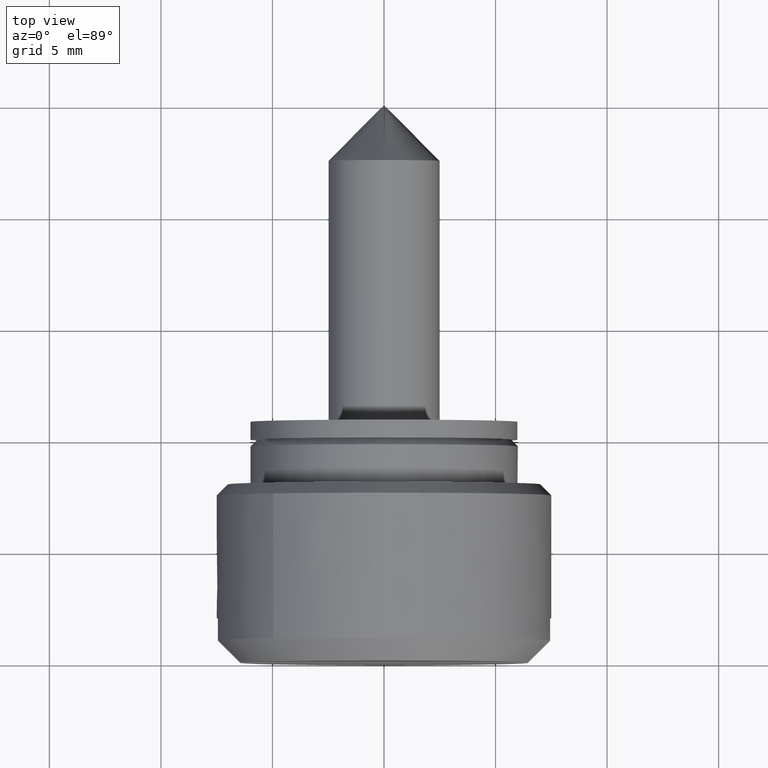
[diagram: clean part render]
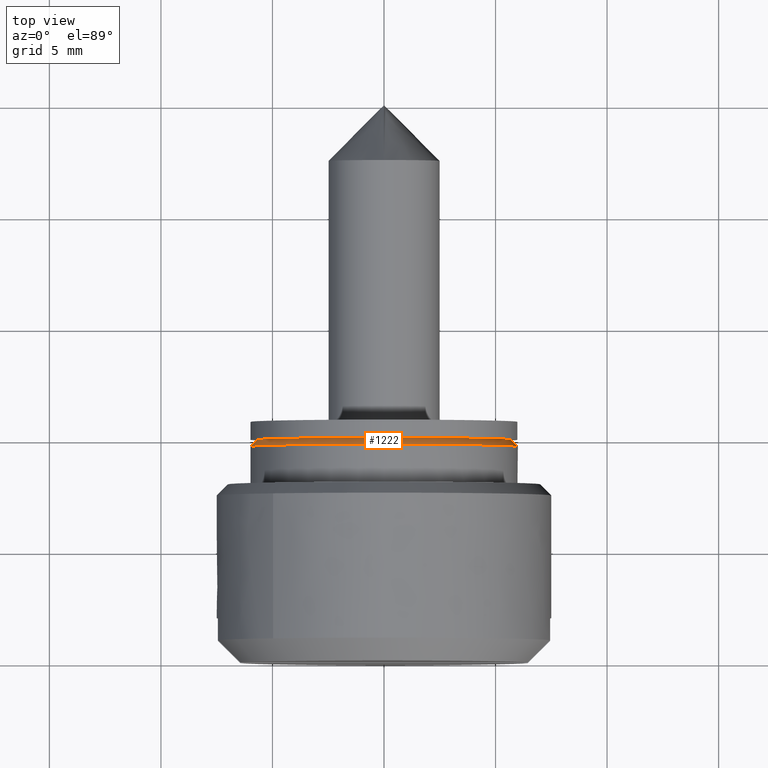
[diagram: same view with one face highlighted and labeled with its STEP entity id]
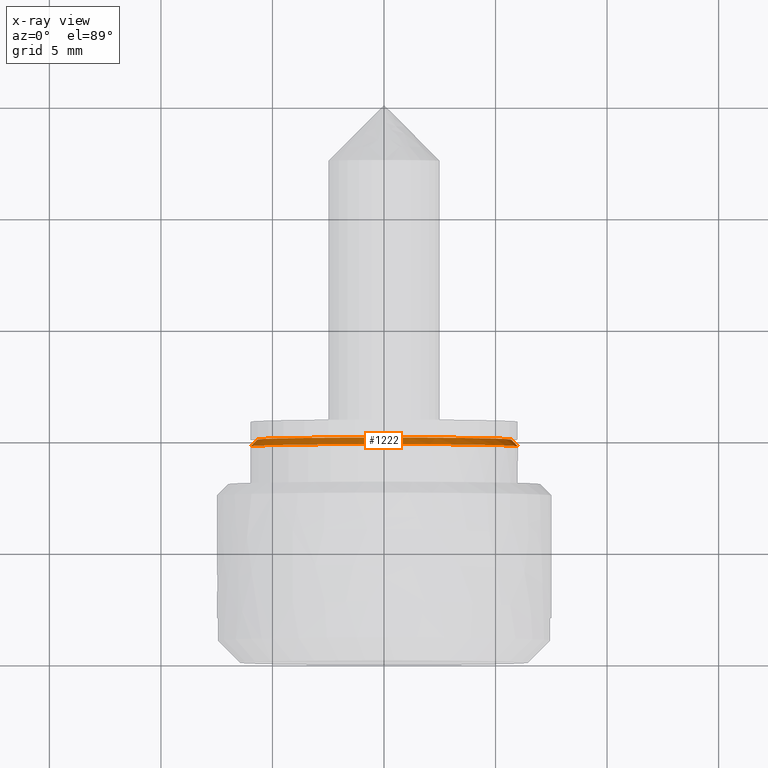
[diagram: x-ray of the same camera — body ghosted, the highlighted face saturated]
A machine part, top view. The second image highlights one B-rep face of the part: STEP entity #1222.
The next image is the same camera in x-ray: the body ghosted, the highlighted face saturated — about 0% of this face is hidden behind the body in this view.
In plain terms, the highlighted face is a freeform B-spline surface patch.
Its self-contained STEP definition (entity closure, byte-faithful):
#1025=CARTESIAN_POINT('',(-0.300000000001781,5.986956455158342,-0.395414218332650));
#1026=VERTEX_POINT('',#1025);
#1042=CARTESIAN_POINT('',(-9.314638E-013,5.687608632400035,-0.375643507409910));
#1043=VERTEX_POINT('',#1042);
#1044=CARTESIAN_POINT('',(-9.314638E-013,5.687608632400035,-0.375643507409910));
#1045=CARTESIAN_POINT('',(-0.300000000001781,5.986956455158342,-0.395414218332650));
#1046=QUASI_UNIFORM_CURVE('',1,(#1044,#1045),.UNSPECIFIED.,.F.,.U.);
#1047=EDGE_CURVE('',#1043,#1026,#1046,.T.);
#1064=CARTESIAN_POINT('',(-2.028944E-012,-5.699782961467674,0.049741252355682));
#1065=VERTEX_POINT('',#1064);
#1081=CARTESIAN_POINT('',(-0.300000000000748,-5.999771538385758,0.052359212996004));
#1082=VERTEX_POINT('',#1081);
#1083=CARTESIAN_POINT('',(-2.028944E-012,-5.699782961467674,0.049741252355682));
#1084=CARTESIAN_POINT('',(-0.300000000000748,-5.999771538385758,0.052359212996004));
#1085=QUASI_UNIFORM_CURVE('',1,(#1083,#1084),.UNSPECIFIED.,.F.,.U.);
#1086=EDGE_CURVE('',#1065,#1082,#1085,.T.);
#1121=CARTESIAN_POINT('',(0.007499999999999,-5.692283247042793,0.049675803324493));
#1122=CARTESIAN_POINT('',(0.007499999999999,-5.642607443718299,5.741959050367286));
#1123=CARTESIAN_POINT('',(0.007499999999999,0.049675803324493,5.692283247042793));
#1124=CARTESIAN_POINT('',(0.007499999999999,5.741959050367286,5.642607443718299));
#1125=CARTESIAN_POINT('',(0.007499999999999,5.692283247042793,-0.049675803324493));
#1126=CARTESIAN_POINT('',(0.007499999999999,5.690861546893815,-0.212586504284569));
#1127=CARTESIAN_POINT('',(0.007499999999999,5.680124936830620,-0.375149239629936));
#1128=CARTESIAN_POINT('',(-0.307687499999966,-6.007458745668583,0.052426298231887));
#1129=CARTESIAN_POINT('',(-0.307687499999966,-5.955032447436696,6.059885043900469));
#1130=CARTESIAN_POINT('',(-0.307687499999966,0.052426298231887,6.007458745668583));
#1131=CARTESIAN_POINT('',(-0.307687499999966,6.059885043900469,5.955032447436696));
#1132=CARTESIAN_POINT('',(-0.307687499999966,6.007458745668583,-0.052426298231887));
#1133=CARTESIAN_POINT('',(-0.307687499999966,6.005958327537047,-0.224357186554080));
#1134=CARTESIAN_POINT('',(-0.307687499999966,5.994627243115611,-0.395920842785994));
#1142=(BOUNDED_SURFACE()B_SPLINE_SURFACE(2,1,((#1121,#1128),(#1122,#1129),(#1123,#1130),(#1124,#1131),(#1125,#1132),(#1126,#1133),(#1127,#1134)),.UNSPECIFIED.,.F.,.F.,.U.)B_SPLINE_SURFACE_WITH_KNOTS((3,2,2,3),(2,2),(0.0,9.953862563997252,19.907725127994500,20.305879630554390),(0.0,0.445742437190447),.UNSPECIFIED.)GEOMETRIC_REPRESENTATION_ITEM()RATIONAL_B_SPLINE_SURFACE(((1.0,1.0),(0.707106781186548,0.707106781186548),(1.0,1.0),(0.707106781186548,0.707106781186548),(1.0,1.0),(0.988284271247462,0.988284271247462),(0.977505800795127,0.977505800795127)))REPRESENTATION_ITEM('')SURFACE());
#1143=CARTESIAN_POINT('',(-0.299999999999967,5.981504327185722,0.470750447521118));
#1144=VERTEX_POINT('',#1143);
#1145=CARTESIAN_POINT('',(-0.299999999999967,5.981504327185722,0.470750447521118));
#1146=CARTESIAN_POINT('',(-0.299999999999967,6.000000000000001,0.235738569047488));
#1147=CARTESIAN_POINT('',(-0.299999999999967,6.0,0.0));
#1148=CARTESIAN_POINT('',(-0.299999999999967,6.0,-0.197922243144326));
#1149=CARTESIAN_POINT('',(-0.300000000001781,5.986956455158342,-0.395414218332650));
#1157=(BOUNDED_CURVE()B_SPLINE_CURVE(2,(#1145,#1146,#1147,#1148,#1149),.UNSPECIFIED.,.F.,.U.)B_SPLINE_CURVE_WITH_KNOTS((3,2,3),(0.736331418904445,0.750000000000000,0.761505472927561),.UNSPECIFIED.)CURVE()GEOMETRIC_REPRESENTATION_ITEM()RATIONAL_B_SPLINE_CURVE((0.969723602995916,0.983986261145241,1.0,0.986520500001102,0.974281704180720))REPRESENTATION_ITEM(''));
#1158=EDGE_CURVE('',#1144,#1026,#1157,.T.);
#1159=ORIENTED_EDGE('',*,*,#1158,.F.);
#1160=CARTESIAN_POINT('',(-0.299999999999967,0.0,6.0));
#1161=VERTEX_POINT('',#1160);
#1162=CARTESIAN_POINT('',(-0.299999999999967,0.0,6.0));
#1163=CARTESIAN_POINT('',(-0.299999999999967,5.546346788396235,6.0));
#1164=CARTESIAN_POINT('',(-0.299999999999967,5.981504327185722,0.470750447521118));
#1172=(BOUNDED_CURVE()B_SPLINE_CURVE(2,(#1162,#1163,#1164),.UNSPECIFIED.,.F.,.U.)B_SPLINE_CURVE_WITH_KNOTS((3,3),(0.500000000000000,0.736331418904445),.UNSPECIFIED.)CURVE()GEOMETRIC_REPRESENTATION_ITEM()RATIONAL_B_SPLINE_CURVE((1.0,0.723120520041307,0.969723602995916))REPRESENTATION_ITEM(''));
#1173=EDGE_CURVE('',#1161,#1144,#1172,.T.);
#1174=ORIENTED_EDGE('',*,*,#1173,.F.);
#1175=CARTESIAN_POINT('',(-0.300000000000748,-5.999771538385758,0.052359212996004));
#1176=CARTESIAN_POINT('',(-0.299999999999967,-5.947867263558460,6.0));
#1177=CARTESIAN_POINT('',(-0.299999999999967,0.0,6.0));
#1185=(BOUNDED_CURVE()B_SPLINE_CURVE(2,(#1175,#1176,#1177),.UNSPECIFIED.,.F.,.U.)B_SPLINE_CURVE_WITH_KNOTS((3,3),(0.251539894335325,0.500000000000000),.UNSPECIFIED.)CURVE()GEOMETRIC_REPRESENTATION_ITEM()RATIONAL_B_SPLINE_CURVE((0.996414028099624,0.708910879620571,1.0))REPRESENTATION_ITEM(''));
#1186=EDGE_CURVE('',#1082,#1161,#1185,.T.);
#1187=ORIENTED_EDGE('',*,*,#1186,.F.);
#1188=ORIENTED_EDGE('',*,*,#1086,.F.);
#1189=CARTESIAN_POINT('',(0.0,0.0,5.700000000000000));
#1190=VERTEX_POINT('',#1189);
#1191=CARTESIAN_POINT('',(0.0,0.0,5.700000000000000));
#1192=CARTESIAN_POINT('',(0.0,-5.650473900361770,5.700000000000000));
#1193=CARTESIAN_POINT('',(-2.028944E-012,-5.699782961467674,0.049741252355682));
#1201=(BOUNDED_CURVE()B_SPLINE_CURVE(2,(#1191,#1192,#1193),.UNSPECIFIED.,.F.,.U.)B_SPLINE_CURVE_WITH_KNOTS((3,3),(0.0,0.248460105664090),.UNSPECIFIED.)CURVE()GEOMETRIC_REPRESENTATION_ITEM()RATIONAL_B_SPLINE_CURVE((1.0,0.708910879621257,0.996414028098270))REPRESENTATION_ITEM(''));
#1202=EDGE_CURVE('',#1190,#1065,#1201,.T.);
#1203=ORIENTED_EDGE('',*,*,#1202,.F.);
#1204=CARTESIAN_POINT('',(-9.314638E-013,5.687608632400035,-0.375643507409910));
#1205=CARTESIAN_POINT('',(0.0,5.700000000000000,-0.188026130981032));
#1206=CARTESIAN_POINT('',(0.0,5.700000000000000,0.0));
#1207=CARTESIAN_POINT('',(0.0,5.699999999999999,5.699999999999999));
#1208=CARTESIAN_POINT('',(0.0,0.0,5.700000000000000));
#1216=(BOUNDED_CURVE()B_SPLINE_CURVE(2,(#1204,#1205,#1206,#1207,#1208),.UNSPECIFIED.,.F.,.U.)B_SPLINE_CURVE_WITH_KNOTS((3,2,3),(0.738494527072806,0.750000000000000,1.0),.UNSPECIFIED.)CURVE()GEOMETRIC_REPRESENTATION_ITEM()RATIONAL_B_SPLINE_CURVE((0.974281704181500,0.986520500001532,1.0,0.707106781186547,1.0))REPRESENTATION_ITEM(''));
#1217=EDGE_CURVE('',#1043,#1190,#1216,.T.);
#1218=ORIENTED_EDGE('',*,*,#1217,.F.);
#1219=ORIENTED_EDGE('',*,*,#1047,.T.);
#1220=EDGE_LOOP('',(#1159,#1174,#1187,#1188,#1203,#1218,#1219));
#1221=FACE_OUTER_BOUND('',#1220,.T.);
#1222=ADVANCED_FACE('',(#1221),#1142,.T.);